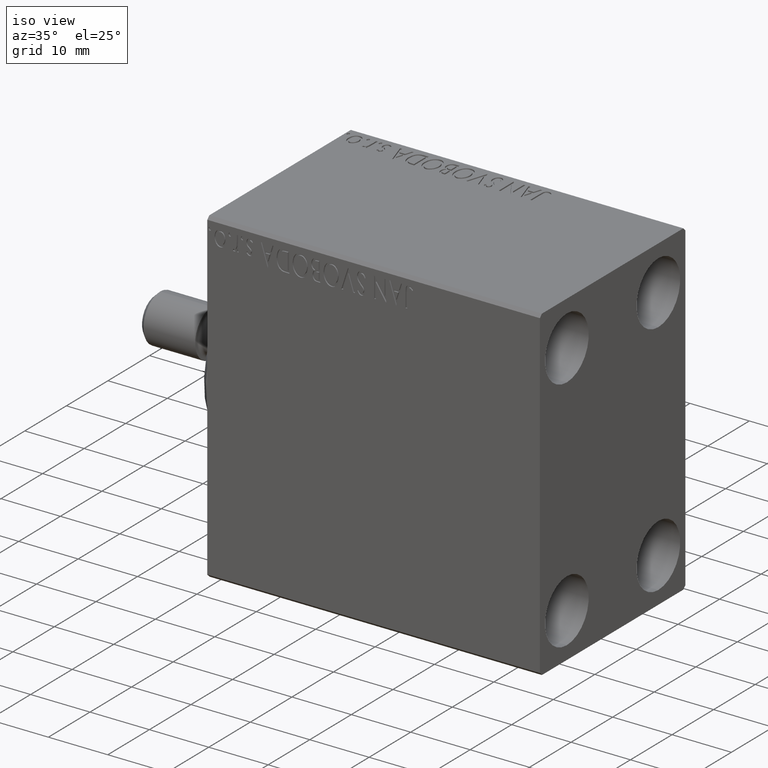
[diagram: clean part render]
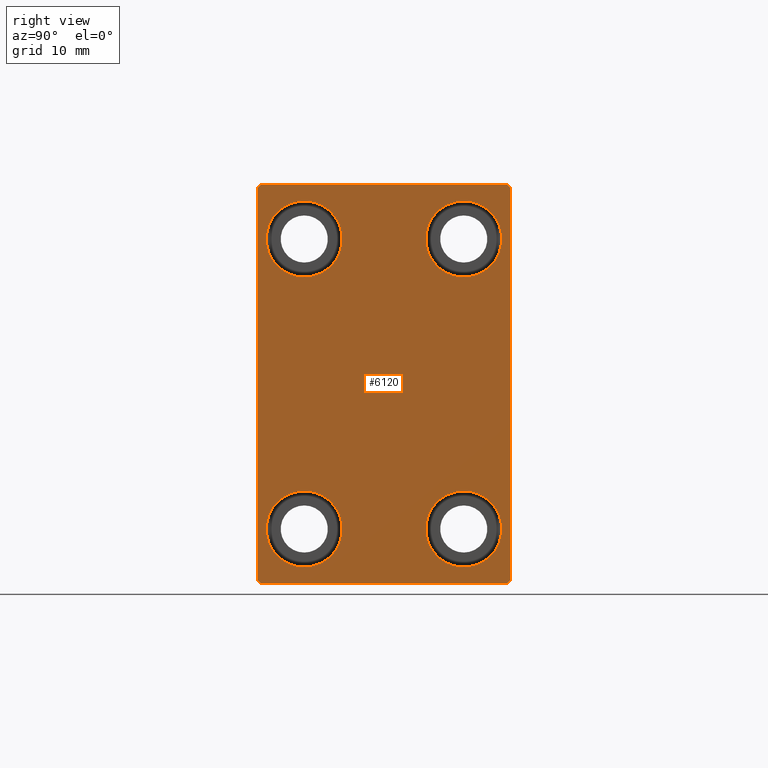
[diagram: tour spotlight — one face highlighted and labeled with its STEP entity id]
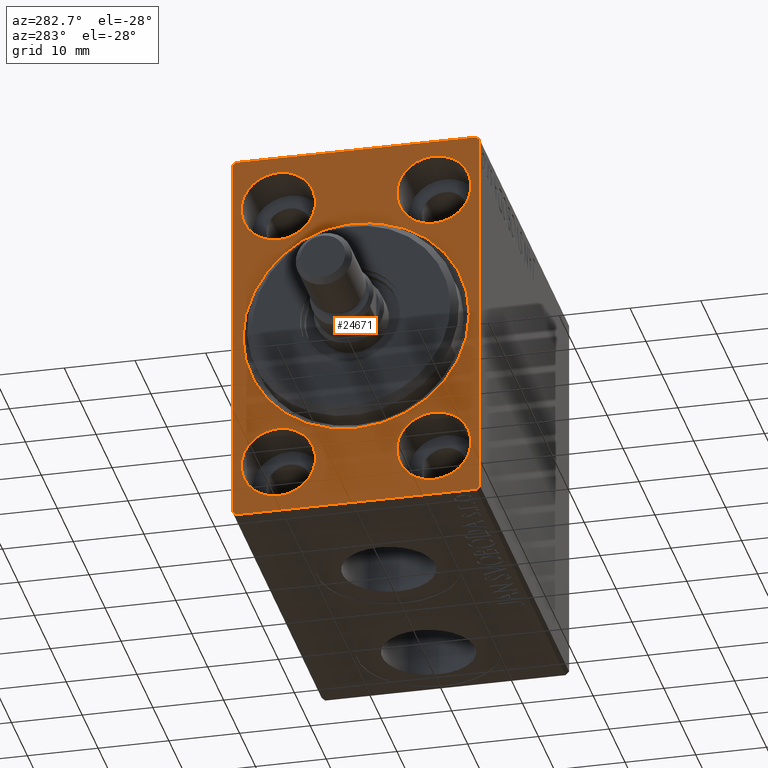
[diagram: tour spotlight — one face highlighted and labeled with its STEP entity id]
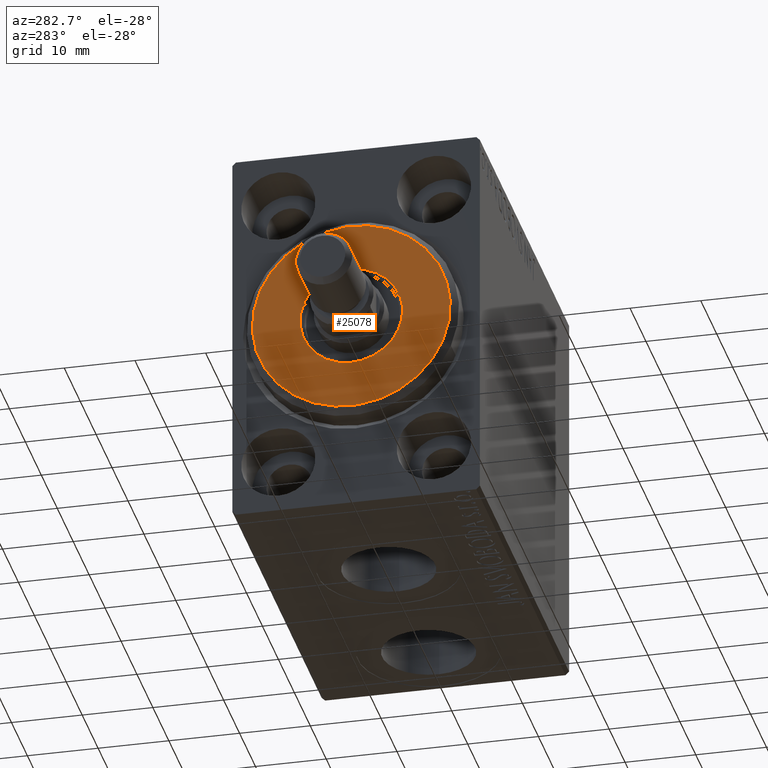
[diagram: tour spotlight — one face highlighted and labeled with its STEP entity id]
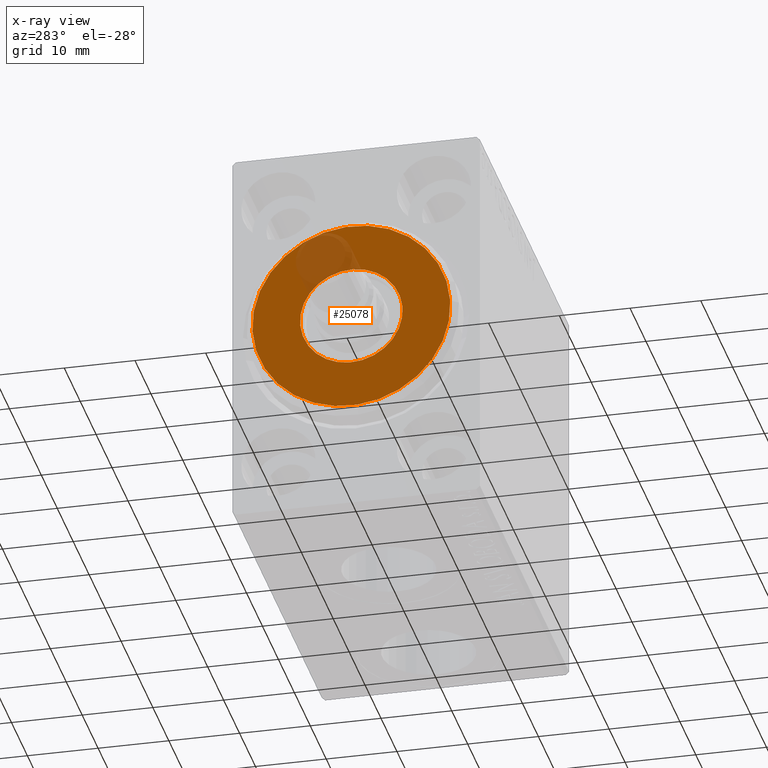
[diagram: x-ray of the same camera — body ghosted, this tour face saturated]
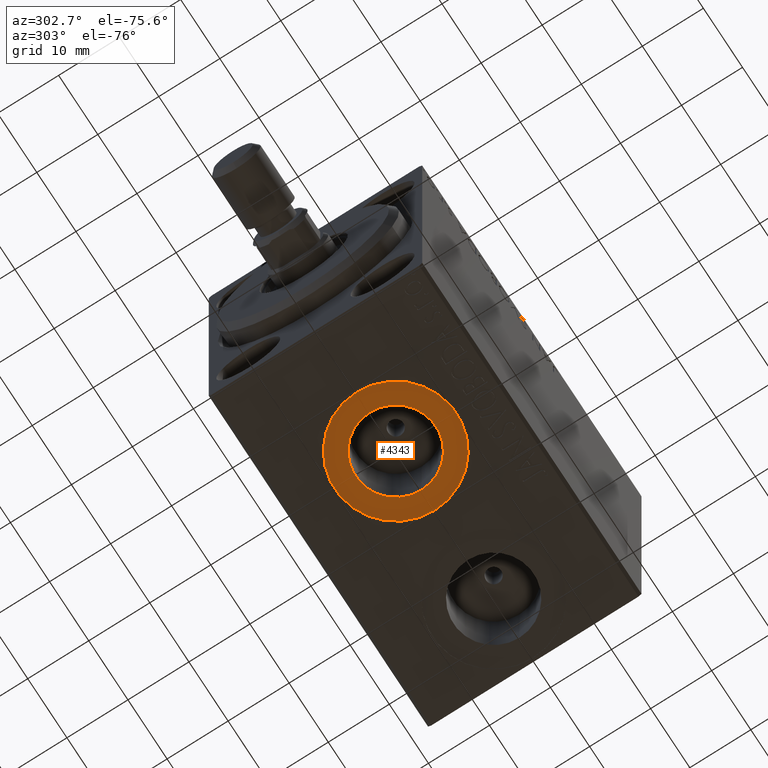
[diagram: tour spotlight — one face highlighted and labeled with its STEP entity id]
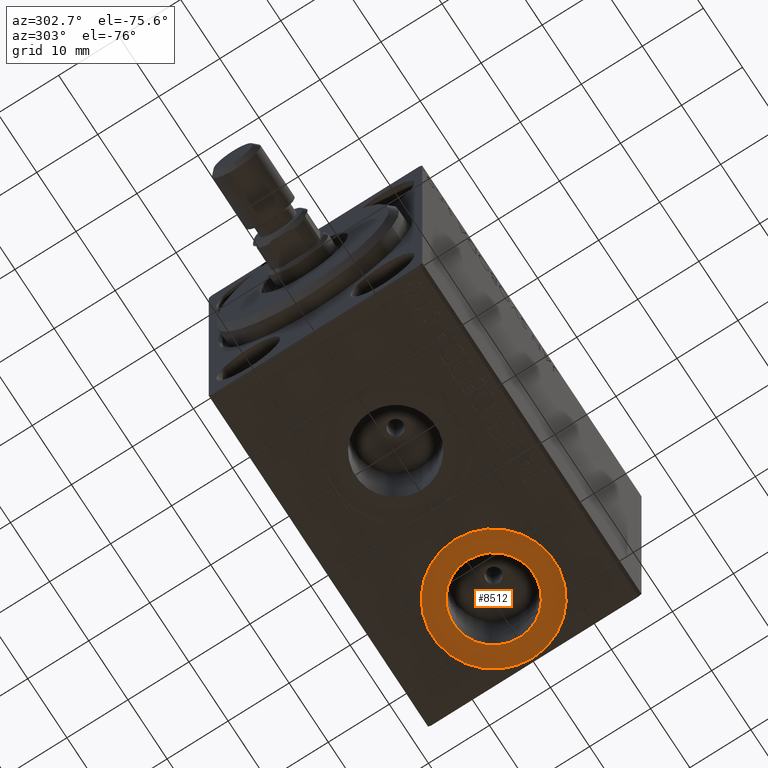
[diagram: tour spotlight — one face highlighted and labeled with its STEP entity id]
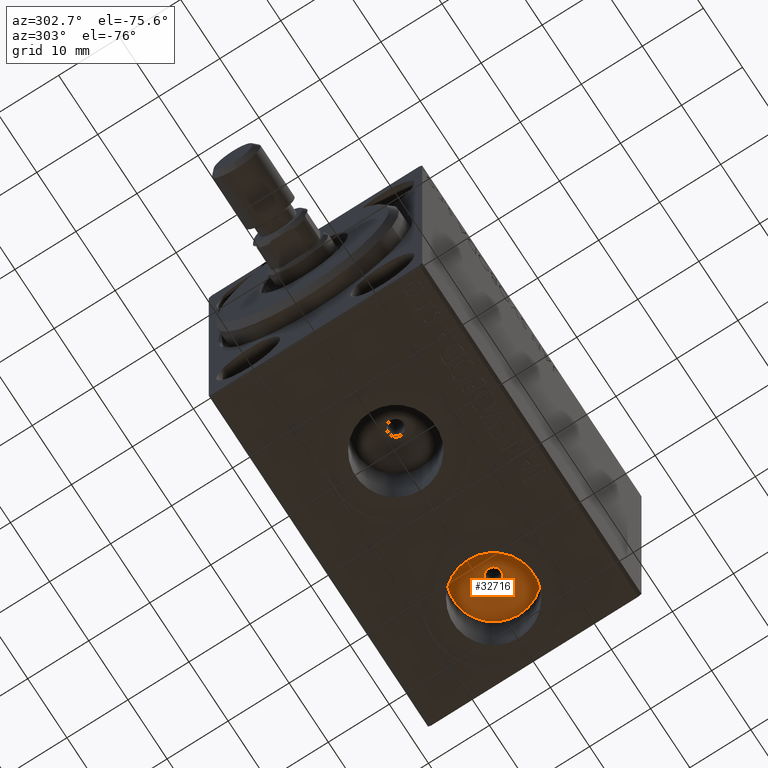
[diagram: tour spotlight — one face highlighted and labeled with its STEP entity id]
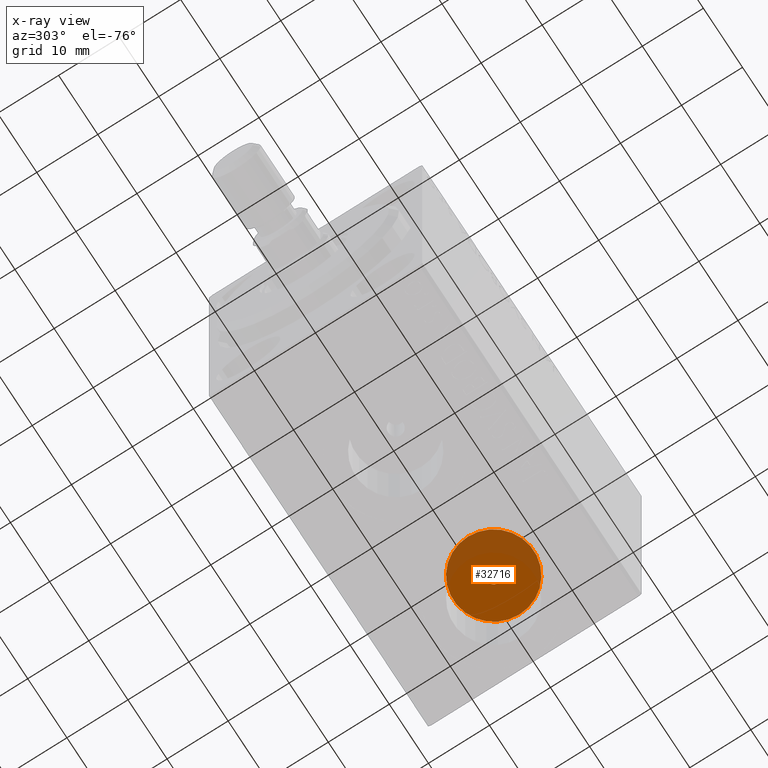
[diagram: x-ray of the same camera — body ghosted, this tour face saturated]
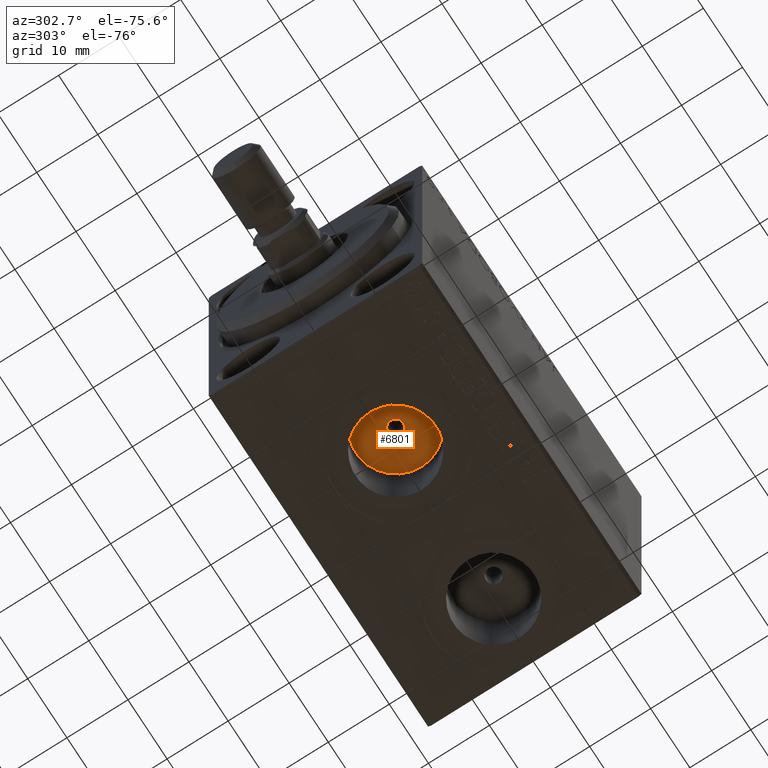
[diagram: tour spotlight — one face highlighted and labeled with its STEP entity id]
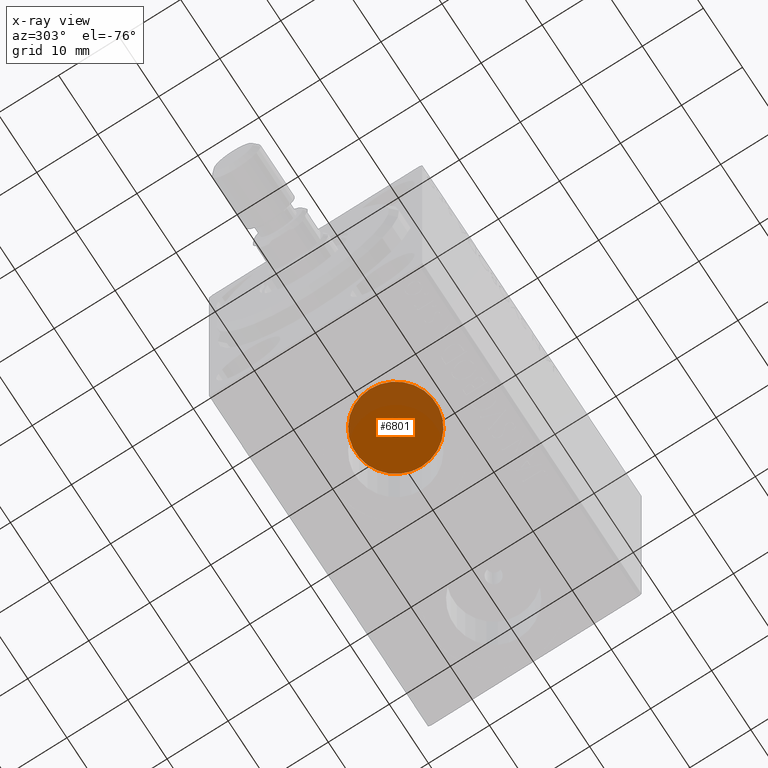
[diagram: x-ray of the same camera — body ghosted, this tour face saturated]
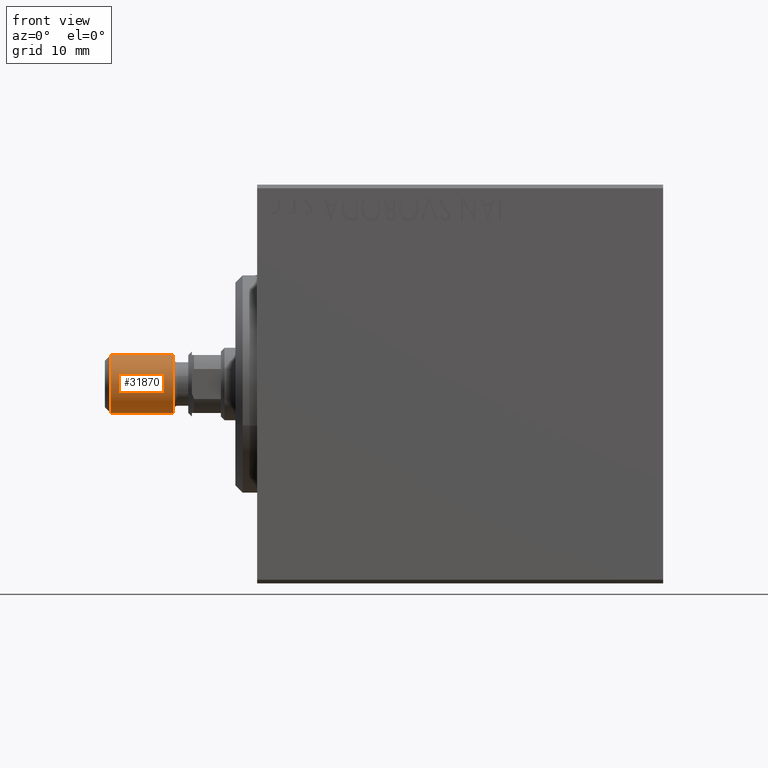
[diagram: tour spotlight — one face highlighted and labeled with its STEP entity id]
A machine part: a face-by-face anatomy tour. The part has 879 B-rep faces; the first image is the clean iso view, then the 8 largest visible faces are spotlighted one at a time (largest first), each with its STEP entity span.

Face 1 — right view, entity #6120. In plain terms, the highlighted planar face has unit normal (1, 0, 0).
Definition (entity closure, byte-faithful):
#105 = LINE ( 'NONE', #17449, #27207 ) ;
#1041 = EDGE_CURVE ( 'NONE', #15443, #11159, #5521, .T. ) ;
#1462 = EDGE_LOOP ( 'NONE', ( #13166, #6111 ) ) ;
#1482 = LINE ( 'NONE', #21744, #34280 ) ;
#1484 = CIRCLE ( 'NONE', #25193, 5.250000000000000888 ) ;
#1746 = DIRECTION ( 'NONE',  ( 0.000000000000000000, 0.000000000000000000, 1.000000000000000000 ) ) ;
#1947 = AXIS2_PLACEMENT_3D ( 'NONE', #43486, #6143, #6362 ) ;
#2053 = ORIENTED_EDGE ( 'NONE', *, *, #14049, .T. ) ;
#2074 = DIRECTION ( 'NONE',  ( -0.000000000000000000, 0.7071067811865474617, -0.7071067811865474617 ) ) ;
#2086 = CARTESIAN_POINT ( 'NONE',  ( 56.00000000000000000, -16.99999999999999289, -27.50000000000000355 ) ) ;
#2376 = DIRECTION ( 'NONE',  ( 0.000000000000000000, 0.000000000000000000, 1.000000000000000000 ) ) ;
#2525 = PLANE ( 'NONE',  #1947 ) ;
#3605 = CARTESIAN_POINT ( 'NONE',  ( 56.00000000000000000, 17.50000000000000000, 27.50000000000000355 ) ) ;
#3701 = CARTESIAN_POINT ( 'NONE',  ( 56.00000000000000000, -17.50000000000000000, 26.99999999999998934 ) ) ;
#4020 = DIRECTION ( 'NONE',  ( -1.000000000000000000, -0.000000000000000000, -0.000000000000000000 ) ) ;
#4136 = CIRCLE ( 'NONE', #40162, 5.250000000000000888 ) ;
#4275 = DIRECTION ( 'NONE',  ( 0.000000000000000000, 0.000000000000000000, 1.000000000000000000 ) ) ;
#4398 = EDGE_LOOP ( 'NONE', ( #6006, #21672 ) ) ;
#4548 = EDGE_CURVE ( 'NONE', #35701, #37944, #23448, .T. ) ;
#4636 = DIRECTION ( 'NONE',  ( 0.000000000000000000, 0.000000000000000000, 1.000000000000000000 ) ) ;
#4660 = EDGE_CURVE ( 'NONE', #16739, #21972, #35342, .T. ) ;
#4728 = ORIENTED_EDGE ( 'NONE', *, *, #35345, .T. ) ;
#5101 = CARTESIAN_POINT ( 'NONE',  ( 56.00000000000000000, -11.00000000000000355, -14.75000000000000000 ) ) ;
#5254 = LINE ( 'NONE', #26613, #31331 ) ;
#5521 = LINE ( 'NONE', #42647, #28510 ) ;
#5611 = ORIENTED_EDGE ( 'NONE', *, *, #32662, .T. ) ;
#6006 = ORIENTED_EDGE ( 'NONE', *, *, #9038, .T. ) ;
#6111 = ORIENTED_EDGE ( 'NONE', *, *, #38537, .T. ) ;
#6120 = ADVANCED_FACE ( 'NONE', ( #12903, #26617, #44148, #36752, #13111 ), #2525, .T. ) ;
#6143 = DIRECTION ( 'NONE',  ( 1.000000000000000000, 0.000000000000000000, 0.000000000000000000 ) ) ;
#6206 = AXIS2_PLACEMENT_3D ( 'NONE', #28149, #35120, #4275 ) ;
#6362 = DIRECTION ( 'NONE',  ( 0.000000000000000000, 0.000000000000000000, -1.000000000000000000 ) ) ;
#7104 = CARTESIAN_POINT ( 'NONE',  ( 56.00000000000000000, 11.00000000000000355, -14.75000000000000000 ) ) ;
#7541 = CARTESIAN_POINT ( 'NONE',  ( 56.00000000000000000, 11.00000000000000355, 20.00000000000000000 ) ) ;
#8080 = DIRECTION ( 'NONE',  ( -1.000000000000000000, -0.000000000000000000, -0.000000000000000000 ) ) ;
#8984 = ORIENTED_EDGE ( 'NONE', *, *, #4548, .T. ) ;
#9038 = EDGE_CURVE ( 'NONE', #13640, #16713, #23932, .T. ) ;
#9757 = EDGE_LOOP ( 'NONE', ( #20066, #11100 ) ) ;
#11000 = DIRECTION ( 'NONE',  ( 0.000000000000000000, 0.000000000000000000, 1.000000000000000000 ) ) ;
#11100 = ORIENTED_EDGE ( 'NONE', *, *, #29616, .T. ) ;
#11159 = VERTEX_POINT ( 'NONE', #34402 ) ;
#11193 = CARTESIAN_POINT ( 'NONE',  ( 56.00000000000000000, -11.00000000000000355, -25.25000000000000000 ) ) ;
#11353 = DIRECTION ( 'NONE',  ( -0.000000000000000000, 0.7071067811865474617, 0.7071067811865474617 ) ) ;
#11863 = EDGE_CURVE ( 'NONE', #16713, #13640, #16118, .T. ) ;
#12903 = FACE_BOUND ( 'NONE', #4398, .T. ) ;
#13111 = FACE_OUTER_BOUND ( 'NONE', #27987, .T. ) ;
#13166 = ORIENTED_EDGE ( 'NONE', *, *, #37576, .T. ) ;
#13193 = VERTEX_POINT ( 'NONE', #35519 ) ;
#13563 = VECTOR ( 'NONE', #42272, 1000.000000000000000 ) ;
#13640 = VERTEX_POINT ( 'NONE', #33148 ) ;
#14049 = EDGE_CURVE ( 'NONE', #37944, #35701, #19030, .T. ) ;
#14337 = DIRECTION ( 'NONE',  ( -1.000000000000000000, -0.000000000000000000, -0.000000000000000000 ) ) ;
#14863 = CARTESIAN_POINT ( 'NONE',  ( 56.00000000000000000, -17.50000000000000000, -27.50000000000000355 ) ) ;
#15079 = ORIENTED_EDGE ( 'NONE', *, *, #1041, .T. ) ;
#15443 = VERTEX_POINT ( 'NONE', #3701 ) ;
#16118 = CIRCLE ( 'NONE', #19702, 5.250000000000000888 ) ;
#16355 = LINE ( 'NONE', #23752, #31576 ) ;
#16713 = VERTEX_POINT ( 'NONE', #7104 ) ;
#16739 = VERTEX_POINT ( 'NONE', #2086 ) ;
#17449 = CARTESIAN_POINT ( 'NONE',  ( 56.00000000000000000, 22.25000000000000711, -22.25000000000000711 ) ) ;
#17691 = VERTEX_POINT ( 'NONE', #11193 ) ;
#18429 = CARTESIAN_POINT ( 'NONE',  ( 56.00000000000000000, 17.50000000000000711, -27.50000000000000355 ) ) ;
#18548 = VERTEX_POINT ( 'NONE', #40912 ) ;
#19030 = CIRCLE ( 'NONE', #23220, 5.250000000000000888 ) ;
#19465 = DIRECTION ( 'NONE',  ( 0.000000000000000000, 0.000000000000000000, -1.000000000000000000 ) ) ;
#19702 = AXIS2_PLACEMENT_3D ( 'NONE', #28412, #25699, #29304 ) ;
#20066 = ORIENTED_EDGE ( 'NONE', *, *, #43139, .T. ) ;
#20835 = EDGE_LOOP ( 'NONE', ( #8984, #2053 ) ) ;
#21336 = CARTESIAN_POINT ( 'NONE',  ( 56.00000000000000000, 17.50000000000000000, 26.99999999999999645 ) ) ;
#21450 = EDGE_CURVE ( 'NONE', #11159, #16739, #5254, .T. ) ;
#21672 = ORIENTED_EDGE ( 'NONE', *, *, #11863, .T. ) ;
#21735 = CARTESIAN_POINT ( 'NONE',  ( 56.00000000000000000, 11.00000000000000355, 20.00000000000000000 ) ) ;
#21744 = CARTESIAN_POINT ( 'NONE',  ( 56.00000000000000000, 22.25000000000000355, 22.25000000000000355 ) ) ;
#21972 = VERTEX_POINT ( 'NONE', #35074 ) ;
#23092 = DIRECTION ( 'NONE',  ( 0.000000000000000000, -0.7071067811865474617, -0.7071067811865474617 ) ) ;
#23220 = AXIS2_PLACEMENT_3D ( 'NONE', #38669, #4020, #11000 ) ;
#23448 = CIRCLE ( 'NONE', #6206, 5.250000000000000888 ) ;
#23584 = ORIENTED_EDGE ( 'NONE', *, *, #21450, .T. ) ;
#23752 = CARTESIAN_POINT ( 'NONE',  ( 56.00000000000000000, -22.24999999999999645, 22.24999999999999645 ) ) ;
#23932 = CIRCLE ( 'NONE', #28992, 5.250000000000000888 ) ;
#24304 = LINE ( 'NONE', #3605, #38863 ) ;
#24513 = EDGE_CURVE ( 'NONE', #36421, #37229, #1482, .T. ) ;
#25193 = AXIS2_PLACEMENT_3D ( 'NONE', #26240, #36610, #2376 ) ;
#25699 = DIRECTION ( 'NONE',  ( -1.000000000000000000, -0.000000000000000000, -0.000000000000000000 ) ) ;
#26184 = DIRECTION ( 'NONE',  ( 0.000000000000000000, 0.000000000000000000, 1.000000000000000000 ) ) ;
#26240 = CARTESIAN_POINT ( 'NONE',  ( 56.00000000000000000, -11.00000000000000355, -20.00000000000000000 ) ) ;
#26409 = DIRECTION ( 'NONE',  ( 0.000000000000000000, 0.000000000000000000, 1.000000000000000000 ) ) ;
#26613 = CARTESIAN_POINT ( 'NONE',  ( 56.00000000000000000, -22.25000000000000355, -22.25000000000000355 ) ) ;
#26617 = FACE_BOUND ( 'NONE', #20835, .T. ) ;
#27207 = VECTOR ( 'NONE', #11353, 1000.000000000000114 ) ;
#27803 = VECTOR ( 'NONE', #28365, 1000.000000000000000 ) ;
#27987 = EDGE_LOOP ( 'NONE', ( #31620, #4728, #15079, #23584, #29167, #5611, #34896, #30647 ) ) ;
#28149 = CARTESIAN_POINT ( 'NONE',  ( 56.00000000000000000, -11.00000000000000355, 20.00000000000000000 ) ) ;
#28175 = EDGE_CURVE ( 'NONE', #35210, #36421, #36191, .T. ) ;
#28365 = DIRECTION ( 'NONE',  ( 0.000000000000000000, 1.000000000000000000, 0.000000000000000000 ) ) ;
#28412 = CARTESIAN_POINT ( 'NONE',  ( 56.00000000000000000, 11.00000000000000355, -20.00000000000000000 ) ) ;
#28510 = VECTOR ( 'NONE', #19465, 1000.000000000000000 ) ;
#28992 = AXIS2_PLACEMENT_3D ( 'NONE', #32599, #8080, #1746 ) ;
#29167 = ORIENTED_EDGE ( 'NONE', *, *, #4660, .T. ) ;
#29304 = DIRECTION ( 'NONE',  ( 0.000000000000000000, 0.000000000000000000, 1.000000000000000000 ) ) ;
#29338 = VERTEX_POINT ( 'NONE', #5101 ) ;
#29616 = EDGE_CURVE ( 'NONE', #29338, #17691, #4136, .T. ) ;
#29696 = CARTESIAN_POINT ( 'NONE',  ( 56.00000000000000000, -11.00000000000000355, 14.75000000000000000 ) ) ;
#30230 = DIRECTION ( 'NONE',  ( -1.000000000000000000, -0.000000000000000000, -0.000000000000000000 ) ) ;
#30647 = ORIENTED_EDGE ( 'NONE', *, *, #24513, .T. ) ;
#31331 = VECTOR ( 'NONE', #2074, 1000.000000000000114 ) ;
#31576 = VECTOR ( 'NONE', #23092, 1000.000000000000114 ) ;
#31620 = ORIENTED_EDGE ( 'NONE', *, *, #39014, .T. ) ;
#31665 = DIRECTION ( 'NONE',  ( -0.000000000000000000, -0.7071067811865474617, 0.7071067811865474617 ) ) ;
#32138 = VERTEX_POINT ( 'NONE', #43652 ) ;
#32292 = DIRECTION ( 'NONE',  ( -1.000000000000000000, -0.000000000000000000, -0.000000000000000000 ) ) ;
#32599 = CARTESIAN_POINT ( 'NONE',  ( 56.00000000000000000, 11.00000000000000355, -20.00000000000000000 ) ) ;
#32662 = EDGE_CURVE ( 'NONE', #21972, #35210, #105, .T. ) ;
#33092 = CARTESIAN_POINT ( 'NONE',  ( 56.00000000000000000, 17.50000000000000711, -27.00000000000000355 ) ) ;
#33148 = CARTESIAN_POINT ( 'NONE',  ( 56.00000000000000000, 11.00000000000000355, -25.25000000000000000 ) ) ;
#34269 = CARTESIAN_POINT ( 'NONE',  ( 56.00000000000000000, -11.00000000000000355, 25.25000000000000000 ) ) ;
#34280 = VECTOR ( 'NONE', #31665, 1000.000000000000114 ) ;
#34402 = CARTESIAN_POINT ( 'NONE',  ( 56.00000000000000000, -17.50000000000000000, -26.99999999999999645 ) ) ;
#34896 = ORIENTED_EDGE ( 'NONE', *, *, #28175, .T. ) ;
#35074 = CARTESIAN_POINT ( 'NONE',  ( 56.00000000000000000, 17.00000000000000711, -27.50000000000000355 ) ) ;
#35120 = DIRECTION ( 'NONE',  ( -1.000000000000000000, -0.000000000000000000, -0.000000000000000000 ) ) ;
#35210 = VERTEX_POINT ( 'NONE', #33092 ) ;
#35240 = CIRCLE ( 'NONE', #38834, 5.250000000000000888 ) ;
#35342 = LINE ( 'NONE', #14863, #27803 ) ;
#35345 = EDGE_CURVE ( 'NONE', #18548, #15443, #16355, .T. ) ;
#35519 = CARTESIAN_POINT ( 'NONE',  ( 56.00000000000000000, 11.00000000000000355, 14.75000000000000000 ) ) ;
#35701 = VERTEX_POINT ( 'NONE', #29696 ) ;
#36191 = LINE ( 'NONE', #18429, #13563 ) ;
#36421 = VERTEX_POINT ( 'NONE', #21336 ) ;
#36610 = DIRECTION ( 'NONE',  ( -1.000000000000000000, -0.000000000000000000, -0.000000000000000000 ) ) ;
#36752 = FACE_BOUND ( 'NONE', #9757, .T. ) ;
#37229 = VERTEX_POINT ( 'NONE', #38072 ) ;
#37576 = EDGE_CURVE ( 'NONE', #13193, #32138, #35240, .T. ) ;
#37944 = VERTEX_POINT ( 'NONE', #34269 ) ;
#38072 = CARTESIAN_POINT ( 'NONE',  ( 56.00000000000000000, 16.99999999999999289, 27.50000000000000355 ) ) ;
#38259 = DIRECTION ( 'NONE',  ( 0.000000000000000000, -1.000000000000000000, -1.982541115402065110E-16 ) ) ;
#38537 = EDGE_CURVE ( 'NONE', #32138, #13193, #41008, .T. ) ;
#38669 = CARTESIAN_POINT ( 'NONE',  ( 56.00000000000000000, -11.00000000000000355, 20.00000000000000000 ) ) ;
#38834 = AXIS2_PLACEMENT_3D ( 'NONE', #21735, #14337, #4636 ) ;
#38863 = VECTOR ( 'NONE', #38259, 1000.000000000000000 ) ;
#39014 = EDGE_CURVE ( 'NONE', #37229, #18548, #24304, .T. ) ;
#40162 = AXIS2_PLACEMENT_3D ( 'NONE', #43494, #30230, #26409 ) ;
#40912 = CARTESIAN_POINT ( 'NONE',  ( 56.00000000000000000, -16.99999999999999289, 27.49999999999999645 ) ) ;
#41008 = CIRCLE ( 'NONE', #41717, 5.250000000000000888 ) ;
#41717 = AXIS2_PLACEMENT_3D ( 'NONE', #7541, #32292, #26184 ) ;
#42272 = DIRECTION ( 'NONE',  ( 0.000000000000000000, -1.261617073437677752E-16, 1.000000000000000000 ) ) ;
#42647 = CARTESIAN_POINT ( 'NONE',  ( 56.00000000000000000, -17.50000000000000000, 27.49999999999999645 ) ) ;
#43139 = EDGE_CURVE ( 'NONE', #17691, #29338, #1484, .T. ) ;
#43486 = CARTESIAN_POINT ( 'NONE',  ( 56.00000000000000000, 0.000000000000000000, 0.000000000000000000 ) ) ;
#43494 = CARTESIAN_POINT ( 'NONE',  ( 56.00000000000000000, -11.00000000000000355, -20.00000000000000000 ) ) ;
#43652 = CARTESIAN_POINT ( 'NONE',  ( 56.00000000000000000, 11.00000000000000355, 25.25000000000000000 ) ) ;
#44148 = FACE_BOUND ( 'NONE', #1462, .T. ) ;

Face 2 — auxiliary view, entity #24671. In plain terms, the highlighted planar face has unit normal (1, 0, 0).
Definition (entity closure, byte-faithful):
#285 = DIRECTION ( 'NONE',  ( 0.000000000000000000, -1.261617073437677752E-16, 1.000000000000000000 ) ) ;
#580 = CARTESIAN_POINT ( 'NONE',  ( 0.000000000000000000, -11.00000000000000355, 20.00000000000000000 ) ) ;
#1088 = EDGE_CURVE ( 'NONE', #16366, #17790, #2567, .T. ) ;
#1852 = CIRCLE ( 'NONE', #3310, 5.250000000000000888 ) ;
#2311 = CARTESIAN_POINT ( 'NONE',  ( 0.000000000000000000, 16.99999999999999289, 27.50000000000000355 ) ) ;
#2394 = CARTESIAN_POINT ( 'NONE',  ( 0.000000000000000000, 17.00000000000000711, -27.50000000000000355 ) ) ;
#2419 = CARTESIAN_POINT ( 'NONE',  ( 0.000000000000000000, -11.00000000000000355, -25.25000000000000000 ) ) ;
#2567 = CIRCLE ( 'NONE', #3372, 16.00000000000001421 ) ;
#2967 = EDGE_CURVE ( 'NONE', #24742, #15352, #1852, .T. ) ;
#3035 = CARTESIAN_POINT ( 'NONE',  ( 0.000000000000000000, 11.00000000000000355, 20.00000000000000000 ) ) ;
#3048 = DIRECTION ( 'NONE',  ( 0.000000000000000000, 0.000000000000000000, 1.000000000000000000 ) ) ;
#3254 = DIRECTION ( 'NONE',  ( 1.000000000000000000, 0.000000000000000000, 0.000000000000000000 ) ) ;
#3310 = AXIS2_PLACEMENT_3D ( 'NONE', #3035, #16794, #30515 ) ;
#3372 = AXIS2_PLACEMENT_3D ( 'NONE', #36122, #22169, #43304 ) ;
#3749 = ORIENTED_EDGE ( 'NONE', *, *, #22336, .F. ) ;
#3776 = ORIENTED_EDGE ( 'NONE', *, *, #32366, .F. ) ;
#3803 = EDGE_CURVE ( 'NONE', #16021, #17838, #19153, .T. ) ;
#3812 = LINE ( 'NONE', #24954, #9958 ) ;
#3888 = CARTESIAN_POINT ( 'NONE',  ( 0.000000000000000000, -11.00000000000000355, -20.00000000000000000 ) ) ;
#6648 = FACE_BOUND ( 'NONE', #43488, .T. ) ;
#6878 = CARTESIAN_POINT ( 'NONE',  ( 0.000000000000000000, -11.00000000000000355, 14.75000000000000000 ) ) ;
#7014 = VECTOR ( 'NONE', #33604, 1000.000000000000114 ) ;
#8273 = ORIENTED_EDGE ( 'NONE', *, *, #39589, .F. ) ;
#8431 = EDGE_CURVE ( 'NONE', #28613, #20048, #20408, .T. ) ;
#8550 = VECTOR ( 'NONE', #38520, 1000.000000000000114 ) ;
#8595 = ORIENTED_EDGE ( 'NONE', *, *, #28842, .T. ) ;
#9197 = CIRCLE ( 'NONE', #32895, 5.250000000000000888 ) ;
#9299 = ORIENTED_EDGE ( 'NONE', *, *, #1088, .T. ) ;
#9595 = ORIENTED_EDGE ( 'NONE', *, *, #38750, .T. ) ;
#9700 = ORIENTED_EDGE ( 'NONE', *, *, #33317, .F. ) ;
#9850 = CARTESIAN_POINT ( 'NONE',  ( 0.000000000000000000, -11.00000000000000355, 20.00000000000000000 ) ) ;
#9958 = VECTOR ( 'NONE', #38034, 1000.000000000000114 ) ;
#10070 = CARTESIAN_POINT ( 'NONE',  ( 0.000000000000000000, -17.50000000000000000, -27.50000000000000355 ) ) ;
#10112 = CARTESIAN_POINT ( 'NONE',  ( 0.000000000000000000, -17.50000000000000000, 26.99999999999998934 ) ) ;
#10248 = DIRECTION ( 'NONE',  ( 0.000000000000000000, 0.000000000000000000, -1.000000000000000000 ) ) ;
#10312 = ORIENTED_EDGE ( 'NONE', *, *, #42699, .F. ) ;
#10404 = VERTEX_POINT ( 'NONE', #15396 ) ;
#10592 = EDGE_LOOP ( 'NONE', ( #8273, #29959 ) ) ;
#10674 = CIRCLE ( 'NONE', #17863, 5.250000000000000888 ) ;
#11426 = ORIENTED_EDGE ( 'NONE', *, *, #30789, .F. ) ;
#11442 = CARTESIAN_POINT ( 'NONE',  ( 0.000000000000000000, -17.50000000000000000, 27.49999999999999645 ) ) ;
#11528 = LINE ( 'NONE', #25244, #40558 ) ;
#11553 = ORIENTED_EDGE ( 'NONE', *, *, #17226, .T. ) ;
#11680 = CIRCLE ( 'NONE', #28932, 5.250000000000000888 ) ;
#12451 = VERTEX_POINT ( 'NONE', #21002 ) ;
#12947 = DIRECTION ( 'NONE',  ( -1.000000000000000000, 0.000000000000000000, 0.000000000000000000 ) ) ;
#13087 = EDGE_CURVE ( 'NONE', #19126, #35791, #18289, .T. ) ;
#13333 = VECTOR ( 'NONE', #25378, 1000.000000000000000 ) ;
#13519 = CARTESIAN_POINT ( 'NONE',  ( 0.000000000000000000, 17.50000000000000711, -27.00000000000000355 ) ) ;
#13713 = CARTESIAN_POINT ( 'NONE',  ( 0.000000000000000000, 11.00000000000000355, -20.00000000000000000 ) ) ;
#14154 = AXIS2_PLACEMENT_3D ( 'NONE', #23097, #44463, #3048 ) ;
#14254 = DIRECTION ( 'NONE',  ( 0.000000000000000000, 0.000000000000000000, 1.000000000000000000 ) ) ;
#14564 = ORIENTED_EDGE ( 'NONE', *, *, #20023, .F. ) ;
#14879 = AXIS2_PLACEMENT_3D ( 'NONE', #16565, #3254, #10248 ) ;
#15352 = VERTEX_POINT ( 'NONE', #27343 ) ;
#15396 = CARTESIAN_POINT ( 'NONE',  ( 0.000000000000000000, -11.00000000000000355, 25.25000000000000000 ) ) ;
#16021 = VERTEX_POINT ( 'NONE', #2419 ) ;
#16366 = VERTEX_POINT ( 'NONE', #33547 ) ;
#16391 = DIRECTION ( 'NONE',  ( -1.000000000000000000, 0.000000000000000000, 0.000000000000000000 ) ) ;
#16565 = CARTESIAN_POINT ( 'NONE',  ( 0.000000000000000000, 0.000000000000000000, 0.000000000000000000 ) ) ;
#16632 = VERTEX_POINT ( 'NONE', #6878 ) ;
#16794 = DIRECTION ( 'NONE',  ( -1.000000000000000000, 0.000000000000000000, 0.000000000000000000 ) ) ;
#17005 = FACE_BOUND ( 'NONE', #25832, .T. ) ;
#17094 = DIRECTION ( 'NONE',  ( 0.000000000000000000, 0.000000000000000000, 1.000000000000000000 ) ) ;
#17226 = EDGE_CURVE ( 'NONE', #42399, #12451, #11528, .T. ) ;
#17234 = FACE_OUTER_BOUND ( 'NONE', #35873, .T. ) ;
#17790 = VERTEX_POINT ( 'NONE', #36383 ) ;
#17838 = VERTEX_POINT ( 'NONE', #40853 ) ;
#17863 = AXIS2_PLACEMENT_3D ( 'NONE', #9850, #16391, #19976 ) ;
#18241 = VERTEX_POINT ( 'NONE', #20718 ) ;
#18289 = CIRCLE ( 'NONE', #42628, 5.250000000000000888 ) ;
#18364 = CARTESIAN_POINT ( 'NONE',  ( 0.000000000000000000, 17.50000000000000000, 27.50000000000000355 ) ) ;
#18782 = AXIS2_PLACEMENT_3D ( 'NONE', #27087, #20556, #41034 ) ;
#19126 = VERTEX_POINT ( 'NONE', #26433 ) ;
#19153 = CIRCLE ( 'NONE', #14154, 5.250000000000000888 ) ;
#19875 = DIRECTION ( 'NONE',  ( 0.000000000000000000, 0.000000000000000000, -1.000000000000000000 ) ) ;
#19976 = DIRECTION ( 'NONE',  ( 0.000000000000000000, 0.000000000000000000, 1.000000000000000000 ) ) ;
#19990 = ORIENTED_EDGE ( 'NONE', *, *, #2967, .F. ) ;
#20023 = EDGE_CURVE ( 'NONE', #42399, #22492, #27494, .T. ) ;
#20048 = VERTEX_POINT ( 'NONE', #2394 ) ;
#20408 = LINE ( 'NONE', #10070, #28216 ) ;
#20556 = DIRECTION ( 'NONE',  ( -1.000000000000000000, 0.000000000000000000, 0.000000000000000000 ) ) ;
#20718 = CARTESIAN_POINT ( 'NONE',  ( 0.000000000000000000, 16.99999999999999289, 27.50000000000000355 ) ) ;
#20817 = FACE_BOUND ( 'NONE', #35239, .T. ) ;
#21002 = CARTESIAN_POINT ( 'NONE',  ( 0.000000000000000000, -16.99999999999999289, 27.49999999999999645 ) ) ;
#21482 = VECTOR ( 'NONE', #285, 1000.000000000000000 ) ;
#22169 = DIRECTION ( 'NONE',  ( 1.000000000000000000, 0.000000000000000000, 0.000000000000000000 ) ) ;
#22336 = EDGE_CURVE ( 'NONE', #18241, #12451, #41978, .T. ) ;
#22492 = VERTEX_POINT ( 'NONE', #42870 ) ;
#23097 = CARTESIAN_POINT ( 'NONE',  ( 0.000000000000000000, -11.00000000000000355, -20.00000000000000000 ) ) ;
#24270 = CARTESIAN_POINT ( 'NONE',  ( 0.000000000000000000, 11.00000000000000355, -14.75000000000000000 ) ) ;
#24416 = CARTESIAN_POINT ( 'NONE',  ( 0.000000000000000000, 17.50000000000000000, 26.99999999999999645 ) ) ;
#24671 = ADVANCED_FACE ( 'NONE', ( #6648, #17005, #34100, #20817, #41515, #17234 ), #33882, .F. ) ;
#24742 = VERTEX_POINT ( 'NONE', #34554 ) ;
#24954 = CARTESIAN_POINT ( 'NONE',  ( 0.000000000000000000, -16.99999999999999289, -27.50000000000000355 ) ) ;
#25032 = LINE ( 'NONE', #30913, #21482 ) ;
#25244 = CARTESIAN_POINT ( 'NONE',  ( 0.000000000000000000, -17.50000000000000000, 26.99999999999998934 ) ) ;
#25378 = DIRECTION ( 'NONE',  ( 0.000000000000000000, 0.000000000000000000, -1.000000000000000000 ) ) ;
#25832 = EDGE_LOOP ( 'NONE', ( #32629, #38120 ) ) ;
#26419 = DIRECTION ( 'NONE',  ( 1.000000000000000000, 0.000000000000000000, 0.000000000000000000 ) ) ;
#26429 = VERTEX_POINT ( 'NONE', #13519 ) ;
#26433 = CARTESIAN_POINT ( 'NONE',  ( 0.000000000000000000, 11.00000000000000355, -25.25000000000000000 ) ) ;
#26663 = DIRECTION ( 'NONE',  ( 0.000000000000000000, 0.000000000000000000, 1.000000000000000000 ) ) ;
#27085 = ORIENTED_EDGE ( 'NONE', *, *, #29673, .T. ) ;
#27087 = CARTESIAN_POINT ( 'NONE',  ( 0.000000000000000000, 11.00000000000000355, -20.00000000000000000 ) ) ;
#27343 = CARTESIAN_POINT ( 'NONE',  ( 0.000000000000000000, 11.00000000000000355, 25.25000000000000000 ) ) ;
#27390 = DIRECTION ( 'NONE',  ( 0.000000000000000000, 0.000000000000000000, 1.000000000000000000 ) ) ;
#27494 = LINE ( 'NONE', #11442, #13333 ) ;
#28216 = VECTOR ( 'NONE', #44485, 1000.000000000000000 ) ;
#28613 = VERTEX_POINT ( 'NONE', #28841 ) ;
#28841 = CARTESIAN_POINT ( 'NONE',  ( 0.000000000000000000, -16.99999999999999289, -27.50000000000000355 ) ) ;
#28842 = EDGE_CURVE ( 'NONE', #28613, #22492, #3812, .T. ) ;
#28932 = AXIS2_PLACEMENT_3D ( 'NONE', #3888, #35391, #14254 ) ;
#29066 = LINE ( 'NONE', #41885, #8550 ) ;
#29673 = EDGE_CURVE ( 'NONE', #18241, #38504, #37193, .T. ) ;
#29864 = EDGE_CURVE ( 'NONE', #26429, #20048, #29066, .T. ) ;
#29959 = ORIENTED_EDGE ( 'NONE', *, *, #3803, .F. ) ;
#30515 = DIRECTION ( 'NONE',  ( 0.000000000000000000, 0.000000000000000000, 1.000000000000000000 ) ) ;
#30789 = EDGE_CURVE ( 'NONE', #15352, #24742, #9197, .T. ) ;
#30913 = CARTESIAN_POINT ( 'NONE',  ( 0.000000000000000000, 17.50000000000000711, -27.50000000000000355 ) ) ;
#31667 = AXIS2_PLACEMENT_3D ( 'NONE', #580, #44478, #27390 ) ;
#32366 = EDGE_CURVE ( 'NONE', #10404, #16632, #10674, .T. ) ;
#32629 = ORIENTED_EDGE ( 'NONE', *, *, #44171, .F. ) ;
#32895 = AXIS2_PLACEMENT_3D ( 'NONE', #33207, #12947, #26663 ) ;
#33125 = CIRCLE ( 'NONE', #37420, 16.00000000000001421 ) ;
#33207 = CARTESIAN_POINT ( 'NONE',  ( 0.000000000000000000, 11.00000000000000355, 20.00000000000000000 ) ) ;
#33317 = EDGE_CURVE ( 'NONE', #26429, #38504, #25032, .T. ) ;
#33437 = ORIENTED_EDGE ( 'NONE', *, *, #29864, .T. ) ;
#33547 = CARTESIAN_POINT ( 'NONE',  ( 0.000000000000000000, 1.959434878635766709E-15, -16.00000000000001421 ) ) ;
#33604 = DIRECTION ( 'NONE',  ( -0.000000000000000000, 0.7071067811865474617, -0.7071067811865474617 ) ) ;
#33833 = CARTESIAN_POINT ( 'NONE',  ( 0.000000000000000000, 0.000000000000000000, 0.000000000000000000 ) ) ;
#33882 = PLANE ( 'NONE',  #14879 ) ;
#34100 = FACE_BOUND ( 'NONE', #34844, .T. ) ;
#34554 = CARTESIAN_POINT ( 'NONE',  ( 0.000000000000000000, 11.00000000000000355, 14.75000000000000000 ) ) ;
#34844 = EDGE_LOOP ( 'NONE', ( #3776, #10312 ) ) ;
#35239 = EDGE_LOOP ( 'NONE', ( #11426, #19990 ) ) ;
#35391 = DIRECTION ( 'NONE',  ( -1.000000000000000000, 0.000000000000000000, 0.000000000000000000 ) ) ;
#35791 = VERTEX_POINT ( 'NONE', #24270 ) ;
#35873 = EDGE_LOOP ( 'NONE', ( #14564, #11553, #3749, #27085, #9700, #33437, #38394, #8595 ) ) ;
#36122 = CARTESIAN_POINT ( 'NONE',  ( 0.000000000000000000, 0.000000000000000000, 0.000000000000000000 ) ) ;
#36383 = CARTESIAN_POINT ( 'NONE',  ( 0.000000000000000000, 0.000000000000000000, 16.00000000000001421 ) ) ;
#37193 = LINE ( 'NONE', #2311, #7014 ) ;
#37420 = AXIS2_PLACEMENT_3D ( 'NONE', #33833, #26419, #19875 ) ;
#37788 = DIRECTION ( 'NONE',  ( -1.000000000000000000, 0.000000000000000000, 0.000000000000000000 ) ) ;
#38034 = DIRECTION ( 'NONE',  ( -0.000000000000000000, -0.7071067811865474617, 0.7071067811865474617 ) ) ;
#38120 = ORIENTED_EDGE ( 'NONE', *, *, #13087, .F. ) ;
#38394 = ORIENTED_EDGE ( 'NONE', *, *, #8431, .F. ) ;
#38504 = VERTEX_POINT ( 'NONE', #24416 ) ;
#38520 = DIRECTION ( 'NONE',  ( 0.000000000000000000, -0.7071067811865474617, -0.7071067811865474617 ) ) ;
#38750 = EDGE_CURVE ( 'NONE', #17790, #16366, #33125, .T. ) ;
#38839 = DIRECTION ( 'NONE',  ( 0.000000000000000000, -1.000000000000000000, -1.982541115402065110E-16 ) ) ;
#39262 = VECTOR ( 'NONE', #38839, 1000.000000000000000 ) ;
#39589 = EDGE_CURVE ( 'NONE', #17838, #16021, #11680, .T. ) ;
#40558 = VECTOR ( 'NONE', #43664, 1000.000000000000114 ) ;
#40853 = CARTESIAN_POINT ( 'NONE',  ( 0.000000000000000000, -11.00000000000000355, -14.75000000000000000 ) ) ;
#41034 = DIRECTION ( 'NONE',  ( 0.000000000000000000, 0.000000000000000000, 1.000000000000000000 ) ) ;
#41515 = FACE_BOUND ( 'NONE', #10592, .T. ) ;
#41709 = CIRCLE ( 'NONE', #31667, 5.250000000000000888 ) ;
#41885 = CARTESIAN_POINT ( 'NONE',  ( 0.000000000000000000, 17.50000000000000711, -27.00000000000000355 ) ) ;
#41978 = LINE ( 'NONE', #18364, #39262 ) ;
#42399 = VERTEX_POINT ( 'NONE', #10112 ) ;
#42483 = CIRCLE ( 'NONE', #18782, 5.250000000000000888 ) ;
#42628 = AXIS2_PLACEMENT_3D ( 'NONE', #13713, #37788, #17094 ) ;
#42699 = EDGE_CURVE ( 'NONE', #16632, #10404, #41709, .T. ) ;
#42870 = CARTESIAN_POINT ( 'NONE',  ( 0.000000000000000000, -17.50000000000000000, -26.99999999999999645 ) ) ;
#43304 = DIRECTION ( 'NONE',  ( 0.000000000000000000, 0.000000000000000000, -1.000000000000000000 ) ) ;
#43488 = EDGE_LOOP ( 'NONE', ( #9595, #9299 ) ) ;
#43664 = DIRECTION ( 'NONE',  ( -0.000000000000000000, 0.7071067811865474617, 0.7071067811865474617 ) ) ;
#44171 = EDGE_CURVE ( 'NONE', #35791, #19126, #42483, .T. ) ;
#44463 = DIRECTION ( 'NONE',  ( -1.000000000000000000, 0.000000000000000000, 0.000000000000000000 ) ) ;
#44478 = DIRECTION ( 'NONE',  ( -1.000000000000000000, 0.000000000000000000, 0.000000000000000000 ) ) ;
#44485 = DIRECTION ( 'NONE',  ( 0.000000000000000000, 1.000000000000000000, 0.000000000000000000 ) ) ;

Face 3 — auxiliary view, entity #25078. An x-ray twin of the same camera follows (body ghosted, this face saturated) — the face is partly hidden behind the body. In plain terms, the highlighted planar face has unit normal (-1, 0, 0).
Definition (entity closure, byte-faithful):
#76 = EDGE_CURVE ( 'NONE', #34723, #30458, #27805, .T. ) ;
#743 = CARTESIAN_POINT ( 'NONE',  ( 3.000000000000000000, 1.775737858763662015E-15, -13.99999999999999645 ) ) ;
#2487 = EDGE_LOOP ( 'NONE', ( #26703, #26104 ) ) ;
#3217 = DIRECTION ( 'NONE',  ( 1.000000000000000000, -0.000000000000000000, 0.000000000000000000 ) ) ;
#3672 = CARTESIAN_POINT ( 'NONE',  ( 3.000000000000000000, 0.000000000000000000, 0.000000000000000000 ) ) ;
#4290 = EDGE_CURVE ( 'NONE', #38119, #25757, #17013, .T. ) ;
#4916 = CIRCLE ( 'NONE', #33663, 13.99999999999999645 ) ;
#8301 = AXIS2_PLACEMENT_3D ( 'NONE', #12330, #8945, #39772 ) ;
#8404 = AXIS2_PLACEMENT_3D ( 'NONE', #3672, #3217, #27758 ) ;
#8945 = DIRECTION ( 'NONE',  ( 1.000000000000000000, 0.000000000000000000, 0.000000000000000000 ) ) ;
#11312 = AXIS2_PLACEMENT_3D ( 'NONE', #34495, #20304, #13115 ) ;
#12330 = CARTESIAN_POINT ( 'NONE',  ( 3.000000000000000000, 0.000000000000000000, 0.000000000000000000 ) ) ;
#13115 = DIRECTION ( 'NONE',  ( 0.000000000000000000, 0.000000000000000000, -1.000000000000000000 ) ) ;
#14919 = EDGE_LOOP ( 'NONE', ( #26185, #15855 ) ) ;
#15855 = ORIENTED_EDGE ( 'NONE', *, *, #20132, .F. ) ;
#16505 = PLANE ( 'NONE',  #11312 ) ;
#17013 = CIRCLE ( 'NONE', #30659, 7.249999999999999112 ) ;
#20132 = EDGE_CURVE ( 'NONE', #25757, #38119, #27697, .T. ) ;
#20304 = DIRECTION ( 'NONE',  ( 1.000000000000000000, -0.000000000000000000, 0.000000000000000000 ) ) ;
#21356 = DIRECTION ( 'NONE',  ( 1.000000000000000000, -0.000000000000000000, 0.000000000000000000 ) ) ;
#24125 = FACE_BOUND ( 'NONE', #14919, .T. ) ;
#25037 = DIRECTION ( 'NONE',  ( 1.000000000000000000, 0.000000000000000000, 0.000000000000000000 ) ) ;
#25078 = ADVANCED_FACE ( 'NONE', ( #30442, #24125 ), #16505, .T. ) ;
#25757 = VERTEX_POINT ( 'NONE', #44220 ) ;
#26104 = ORIENTED_EDGE ( 'NONE', *, *, #32998, .T. ) ;
#26185 = ORIENTED_EDGE ( 'NONE', *, *, #4290, .F. ) ;
#26703 = ORIENTED_EDGE ( 'NONE', *, *, #76, .T. ) ;
#27697 = CIRCLE ( 'NONE', #8301, 7.249999999999999112 ) ;
#27758 = DIRECTION ( 'NONE',  ( 0.000000000000000000, 0.000000000000000000, -1.000000000000000000 ) ) ;
#27805 = CIRCLE ( 'NONE', #8404, 13.99999999999999645 ) ;
#30442 = FACE_OUTER_BOUND ( 'NONE', #2487, .T. ) ;
#30458 = VERTEX_POINT ( 'NONE', #743 ) ;
#30659 = AXIS2_PLACEMENT_3D ( 'NONE', #35618, #25037, #32249 ) ;
#31940 = DIRECTION ( 'NONE',  ( 0.000000000000000000, 0.000000000000000000, -1.000000000000000000 ) ) ;
#32249 = DIRECTION ( 'NONE',  ( 0.000000000000000000, 0.000000000000000000, -1.000000000000000000 ) ) ;
#32998 = EDGE_CURVE ( 'NONE', #30458, #34723, #4916, .T. ) ;
#33663 = AXIS2_PLACEMENT_3D ( 'NONE', #41619, #21356, #31940 ) ;
#34495 = CARTESIAN_POINT ( 'NONE',  ( 3.000000000000000000, 0.000000000000000000, 0.000000000000000000 ) ) ;
#34723 = VERTEX_POINT ( 'NONE', #39774 ) ;
#35618 = CARTESIAN_POINT ( 'NONE',  ( 3.000000000000000000, 0.000000000000000000, 0.000000000000000000 ) ) ;
#36435 = CARTESIAN_POINT ( 'NONE',  ( 3.000000000000000000, 0.000000000000000000, -7.249999999999999112 ) ) ;
#38119 = VERTEX_POINT ( 'NONE', #36435 ) ;
#39772 = DIRECTION ( 'NONE',  ( 0.000000000000000000, 0.000000000000000000, -1.000000000000000000 ) ) ;
#39774 = CARTESIAN_POINT ( 'NONE',  ( 3.000000000000000000, 0.000000000000000000, 13.99999999999999645 ) ) ;
#41619 = CARTESIAN_POINT ( 'NONE',  ( 3.000000000000000000, 0.000000000000000000, 0.000000000000000000 ) ) ;
#44220 = CARTESIAN_POINT ( 'NONE',  ( 3.000000000000000000, 8.878689293818310074E-16, 7.249999999999999112 ) ) ;

Face 4 — auxiliary view, entity #4343. In plain terms, the highlighted planar face has unit normal (0, 0, -1).
Definition (entity closure, byte-faithful):
#441 = AXIS2_PLACEMENT_3D ( 'NONE', #4555, #43016, #33350 ) ;
#1305 = CIRCLE ( 'NONE', #20716, 10.00000000000000000 ) ;
#2220 = VERTEX_POINT ( 'NONE', #18975 ) ;
#4343 = ADVANCED_FACE ( 'NONE', ( #11323, #32468 ), #29311, .T. ) ;
#4555 = CARTESIAN_POINT ( 'NONE',  ( 0.000000000000000000, 0.000000000000000000, -27.40000000000000568 ) ) ;
#4809 = CARTESIAN_POINT ( 'NONE',  ( 20.50000000000000355, -2.726986211408916281E-15, -27.40000000000000568 ) ) ;
#5996 = EDGE_CURVE ( 'NONE', #15720, #39476, #11290, .T. ) ;
#8482 = DIRECTION ( 'NONE',  ( 0.000000000000000000, 0.000000000000000000, -1.000000000000000000 ) ) ;
#10133 = DIRECTION ( 'NONE',  ( 0.000000000000000000, 0.000000000000000000, -1.000000000000000000 ) ) ;
#11053 = AXIS2_PLACEMENT_3D ( 'NONE', #39079, #8482, #38631 ) ;
#11137 = VERTEX_POINT ( 'NONE', #27644 ) ;
#11172 = EDGE_CURVE ( 'NONE', #11137, #2220, #23962, .T. ) ;
#11290 = CIRCLE ( 'NONE', #42212, 10.00000000000000000 ) ;
#11323 = FACE_BOUND ( 'NONE', #11868, .T. ) ;
#11850 = EDGE_LOOP ( 'NONE', ( #16316, #33164 ) ) ;
#11868 = EDGE_LOOP ( 'NONE', ( #30989, #41468 ) ) ;
#14395 = CARTESIAN_POINT ( 'NONE',  ( 10.50000000000000355, -2.726986211408916281E-15, -27.40000000000000568 ) ) ;
#14793 = CARTESIAN_POINT ( 'NONE',  ( 20.50000000000000355, -2.726986211408916281E-15, -27.40000000000000568 ) ) ;
#15720 = VERTEX_POINT ( 'NONE', #14395 ) ;
#16158 = EDGE_CURVE ( 'NONE', #2220, #11137, #44093, .T. ) ;
#16316 = ORIENTED_EDGE ( 'NONE', *, *, #5996, .T. ) ;
#16527 = CARTESIAN_POINT ( 'NONE',  ( 30.50000000000000711, -1.502339412261563419E-15, -27.40000000000000568 ) ) ;
#18975 = CARTESIAN_POINT ( 'NONE',  ( 27.08000000000000540, -1.921168617569958028E-15, -27.40000000000000568 ) ) ;
#20716 = AXIS2_PLACEMENT_3D ( 'NONE', #44094, #10133, #30612 ) ;
#21538 = DIRECTION ( 'NONE',  ( 0.000000000000000000, 0.000000000000000000, -1.000000000000000000 ) ) ;
#23962 = CIRCLE ( 'NONE', #41223, 6.580000000000002736 ) ;
#27644 = CARTESIAN_POINT ( 'NONE',  ( 13.92000000000000171, -2.726986211408916281E-15, -27.40000000000000568 ) ) ;
#28522 = DIRECTION ( 'NONE',  ( -1.000000000000000000, 0.000000000000000000, 0.000000000000000000 ) ) ;
#29311 = PLANE ( 'NONE',  #441 ) ;
#29336 = DIRECTION ( 'NONE',  ( 0.000000000000000000, 0.000000000000000000, -1.000000000000000000 ) ) ;
#30612 = DIRECTION ( 'NONE',  ( -1.000000000000000000, 0.000000000000000000, 0.000000000000000000 ) ) ;
#30989 = ORIENTED_EDGE ( 'NONE', *, *, #11172, .F. ) ;
#32468 = FACE_OUTER_BOUND ( 'NONE', #11850, .T. ) ;
#32496 = DIRECTION ( 'NONE',  ( -1.000000000000000000, 0.000000000000000000, 0.000000000000000000 ) ) ;
#32923 = EDGE_CURVE ( 'NONE', #39476, #15720, #1305, .T. ) ;
#33164 = ORIENTED_EDGE ( 'NONE', *, *, #32923, .T. ) ;
#33350 = DIRECTION ( 'NONE',  ( -1.000000000000000000, 0.000000000000000000, -0.000000000000000000 ) ) ;
#38631 = DIRECTION ( 'NONE',  ( -1.000000000000000000, 0.000000000000000000, 0.000000000000000000 ) ) ;
#39079 = CARTESIAN_POINT ( 'NONE',  ( 20.50000000000000355, -2.726986211408916281E-15, -27.40000000000000568 ) ) ;
#39476 = VERTEX_POINT ( 'NONE', #16527 ) ;
#41223 = AXIS2_PLACEMENT_3D ( 'NONE', #14793, #21538, #28522 ) ;
#41468 = ORIENTED_EDGE ( 'NONE', *, *, #16158, .F. ) ;
#42212 = AXIS2_PLACEMENT_3D ( 'NONE', #4809, #29336, #32496 ) ;
#43016 = DIRECTION ( 'NONE',  ( 0.000000000000000000, 0.000000000000000000, -1.000000000000000000 ) ) ;
#44093 = CIRCLE ( 'NONE', #11053, 6.580000000000002736 ) ;
#44094 = CARTESIAN_POINT ( 'NONE',  ( 20.50000000000000355, -2.726986211408916281E-15, -27.40000000000000568 ) ) ;

Face 5 — auxiliary view, entity #8512. In plain terms, the highlighted planar face has unit normal (0, 0, -1).
Definition (entity closure, byte-faithful):
#534 = AXIS2_PLACEMENT_3D ( 'NONE', #22750, #5436, #32451 ) ;
#886 = AXIS2_PLACEMENT_3D ( 'NONE', #5252, #18539, #32273 ) ;
#921 = DIRECTION ( 'NONE',  ( 0.000000000000000000, 0.000000000000000000, -1.000000000000000000 ) ) ;
#2475 = CARTESIAN_POINT ( 'NONE',  ( 55.50000000000000000, -4.563956410129945870E-15, -27.40000000000000568 ) ) ;
#3050 = DIRECTION ( 'NONE',  ( -1.000000000000000000, 0.000000000000000000, 0.000000000000000000 ) ) ;
#3507 = CARTESIAN_POINT ( 'NONE',  ( 45.50000000000000000, -5.788603209277299718E-15, -27.40000000000000568 ) ) ;
#4658 = AXIS2_PLACEMENT_3D ( 'NONE', #3507, #41537, #3050 ) ;
#5252 = CARTESIAN_POINT ( 'NONE',  ( 45.50000000000000000, -5.788603209277299718E-15, -27.40000000000000568 ) ) ;
#5436 = DIRECTION ( 'NONE',  ( 0.000000000000000000, 0.000000000000000000, -1.000000000000000000 ) ) ;
#5522 = ORIENTED_EDGE ( 'NONE', *, *, #29902, .T. ) ;
#6830 = VERTEX_POINT ( 'NONE', #42391 ) ;
#7019 = CIRCLE ( 'NONE', #534, 6.580000000000002736 ) ;
#7195 = VERTEX_POINT ( 'NONE', #2475 ) ;
#8512 = ADVANCED_FACE ( 'NONE', ( #29555, #39897 ), #25726, .T. ) ;
#10102 = CARTESIAN_POINT ( 'NONE',  ( 35.50000000000000000, -5.788603209277299718E-15, -27.40000000000000568 ) ) ;
#12857 = AXIS2_PLACEMENT_3D ( 'NONE', #42776, #921, #25242 ) ;
#13440 = AXIS2_PLACEMENT_3D ( 'NONE', #29558, #26165, #15831 ) ;
#15831 = DIRECTION ( 'NONE',  ( -1.000000000000000000, 0.000000000000000000, 0.000000000000000000 ) ) ;
#17008 = CIRCLE ( 'NONE', #13440, 10.00000000000000178 ) ;
#18504 = CIRCLE ( 'NONE', #12857, 10.00000000000000178 ) ;
#18539 = DIRECTION ( 'NONE',  ( 0.000000000000000000, 0.000000000000000000, -1.000000000000000000 ) ) ;
#18938 = EDGE_CURVE ( 'NONE', #34069, #6830, #24058, .T. ) ;
#22750 = CARTESIAN_POINT ( 'NONE',  ( 45.50000000000000000, -5.788603209277299718E-15, -27.40000000000000568 ) ) ;
#22921 = EDGE_LOOP ( 'NONE', ( #25693, #36183 ) ) ;
#23437 = EDGE_CURVE ( 'NONE', #41754, #7195, #17008, .T. ) ;
#24058 = CIRCLE ( 'NONE', #4658, 6.580000000000002736 ) ;
#25242 = DIRECTION ( 'NONE',  ( -1.000000000000000000, 0.000000000000000000, 0.000000000000000000 ) ) ;
#25361 = EDGE_LOOP ( 'NONE', ( #41745, #5522 ) ) ;
#25693 = ORIENTED_EDGE ( 'NONE', *, *, #26360, .F. ) ;
#25726 = PLANE ( 'NONE',  #886 ) ;
#26165 = DIRECTION ( 'NONE',  ( 0.000000000000000000, 0.000000000000000000, -1.000000000000000000 ) ) ;
#26360 = EDGE_CURVE ( 'NONE', #6830, #34069, #7019, .T. ) ;
#29555 = FACE_BOUND ( 'NONE', #22921, .T. ) ;
#29558 = CARTESIAN_POINT ( 'NONE',  ( 45.50000000000000000, -5.788603209277299718E-15, -27.40000000000000568 ) ) ;
#29902 = EDGE_CURVE ( 'NONE', #7195, #41754, #18504, .T. ) ;
#32273 = DIRECTION ( 'NONE',  ( -1.000000000000000000, 0.000000000000000000, -0.000000000000000000 ) ) ;
#32451 = DIRECTION ( 'NONE',  ( -1.000000000000000000, 0.000000000000000000, 0.000000000000000000 ) ) ;
#34069 = VERTEX_POINT ( 'NONE', #41481 ) ;
#36183 = ORIENTED_EDGE ( 'NONE', *, *, #18938, .F. ) ;
#39897 = FACE_OUTER_BOUND ( 'NONE', #25361, .T. ) ;
#41481 = CARTESIAN_POINT ( 'NONE',  ( 52.07999999999999829, -4.982785615438341465E-15, -27.40000000000000568 ) ) ;
#41537 = DIRECTION ( 'NONE',  ( 0.000000000000000000, 0.000000000000000000, -1.000000000000000000 ) ) ;
#41745 = ORIENTED_EDGE ( 'NONE', *, *, #23437, .T. ) ;
#41754 = VERTEX_POINT ( 'NONE', #10102 ) ;
#42391 = CARTESIAN_POINT ( 'NONE',  ( 38.91999999999999460, -5.788603209277299718E-15, -27.40000000000000568 ) ) ;
#42776 = CARTESIAN_POINT ( 'NONE',  ( 45.50000000000000000, -5.788603209277299718E-15, -27.40000000000000568 ) ) ;

Face 6 — auxiliary view, entity #32716. An x-ray twin of the same camera follows (body ghosted, this face saturated) — the face is partly hidden behind the body. In plain terms, the highlighted planar face has unit normal (0, 0, -1).
Definition (entity closure, byte-faithful):
#755 = PLANE ( 'NONE',  #42266 ) ;
#1003 = CARTESIAN_POINT ( 'NONE',  ( 38.91999999999999460, -5.788603209277299718E-15, -14.50000000000000355 ) ) ;
#2995 = CARTESIAN_POINT ( 'NONE',  ( 45.50000000000000000, -5.788603209277299718E-15, -14.50000000000000355 ) ) ;
#3924 = DIRECTION ( 'NONE',  ( -1.000000000000000000, 0.000000000000000000, -0.000000000000000000 ) ) ;
#4654 = DIRECTION ( 'NONE',  ( 0.000000000000000000, 0.000000000000000000, -1.000000000000000000 ) ) ;
#7206 = AXIS2_PLACEMENT_3D ( 'NONE', #34829, #4654, #15016 ) ;
#8244 = CIRCLE ( 'NONE', #31247, 6.580000000000002736 ) ;
#9548 = DIRECTION ( 'NONE',  ( 0.000000000000000000, 0.000000000000000000, -1.000000000000000000 ) ) ;
#9582 = CARTESIAN_POINT ( 'NONE',  ( 45.50000000000000000, -5.801946424232537925E-15, -14.50000000000000355 ) ) ;
#9861 = AXIS2_PLACEMENT_3D ( 'NONE', #9582, #15904, #12968 ) ;
#10697 = FACE_OUTER_BOUND ( 'NONE', #16905, .T. ) ;
#12556 = CARTESIAN_POINT ( 'NONE',  ( 45.50000000000000000, -5.788603209277299718E-15, -14.50000000000000355 ) ) ;
#12927 = ORIENTED_EDGE ( 'NONE', *, *, #25617, .F. ) ;
#12968 = DIRECTION ( 'NONE',  ( -1.000000000000000000, 0.000000000000000000, 0.000000000000000000 ) ) ;
#13277 = EDGE_CURVE ( 'NONE', #33841, #16682, #8244, .T. ) ;
#13520 = ORIENTED_EDGE ( 'NONE', *, *, #13277, .T. ) ;
#14500 = DIRECTION ( 'NONE',  ( 0.000000000000000000, 0.000000000000000000, -1.000000000000000000 ) ) ;
#15016 = DIRECTION ( 'NONE',  ( -1.000000000000000000, 0.000000000000000000, 0.000000000000000000 ) ) ;
#15904 = DIRECTION ( 'NONE',  ( 0.000000000000000000, 0.000000000000000000, -1.000000000000000000 ) ) ;
#16682 = VERTEX_POINT ( 'NONE', #21246 ) ;
#16905 = EDGE_LOOP ( 'NONE', ( #13520, #19237 ) ) ;
#17883 = FACE_BOUND ( 'NONE', #29468, .T. ) ;
#19237 = ORIENTED_EDGE ( 'NONE', *, *, #34020, .T. ) ;
#21246 = CARTESIAN_POINT ( 'NONE',  ( 52.07999999999999829, -4.982785615438341465E-15, -14.50000000000000355 ) ) ;
#22820 = ORIENTED_EDGE ( 'NONE', *, *, #38244, .F. ) ;
#25617 = EDGE_CURVE ( 'NONE', #35978, #36834, #29270, .T. ) ;
#26591 = CIRCLE ( 'NONE', #7206, 1.249999999999994227 ) ;
#29270 = CIRCLE ( 'NONE', #9861, 1.249999999999994227 ) ;
#29468 = EDGE_LOOP ( 'NONE', ( #22820, #12927 ) ) ;
#29651 = DIRECTION ( 'NONE',  ( -1.000000000000000000, 0.000000000000000000, 0.000000000000000000 ) ) ;
#30055 = CARTESIAN_POINT ( 'NONE',  ( 44.25000000000000711, -5.801946424232537925E-15, -14.50000000000000355 ) ) ;
#31247 = AXIS2_PLACEMENT_3D ( 'NONE', #12556, #33036, #29651 ) ;
#32716 = ADVANCED_FACE ( 'NONE', ( #17883, #10697 ), #755, .T. ) ;
#33036 = DIRECTION ( 'NONE',  ( 0.000000000000000000, 0.000000000000000000, -1.000000000000000000 ) ) ;
#33841 = VERTEX_POINT ( 'NONE', #1003 ) ;
#34020 = EDGE_CURVE ( 'NONE', #16682, #33841, #44448, .T. ) ;
#34068 = DIRECTION ( 'NONE',  ( -1.000000000000000000, 0.000000000000000000, 0.000000000000000000 ) ) ;
#34829 = CARTESIAN_POINT ( 'NONE',  ( 45.50000000000000000, -5.801946424232537925E-15, -14.50000000000000355 ) ) ;
#35978 = VERTEX_POINT ( 'NONE', #38606 ) ;
#36568 = AXIS2_PLACEMENT_3D ( 'NONE', #2995, #9548, #34068 ) ;
#36834 = VERTEX_POINT ( 'NONE', #30055 ) ;
#38244 = EDGE_CURVE ( 'NONE', #36834, #35978, #26591, .T. ) ;
#38606 = CARTESIAN_POINT ( 'NONE',  ( 46.74999999999999289, -5.648865574339118990E-15, -14.50000000000000355 ) ) ;
#41291 = CARTESIAN_POINT ( 'NONE',  ( 0.000000000000000000, 0.000000000000000000, -14.50000000000000355 ) ) ;
#42266 = AXIS2_PLACEMENT_3D ( 'NONE', #41291, #14500, #3924 ) ;
#44448 = CIRCLE ( 'NONE', #36568, 6.580000000000002736 ) ;

Face 7 — auxiliary view, entity #6801. An x-ray twin of the same camera follows (body ghosted, this face saturated) — the face is partly hidden behind the body. In plain terms, the highlighted planar face has unit normal (0, 0, -1).
Definition (entity closure, byte-faithful):
#325 = FACE_BOUND ( 'NONE', #23145, .T. ) ;
#809 = DIRECTION ( 'NONE',  ( 0.000000000000000000, 0.000000000000000000, -1.000000000000000000 ) ) ;
#974 = DIRECTION ( 'NONE',  ( 0.000000000000000000, 0.000000000000000000, -1.000000000000000000 ) ) ;
#2690 = AXIS2_PLACEMENT_3D ( 'NONE', #34981, #974, #27795 ) ;
#2804 = DIRECTION ( 'NONE',  ( 0.000000000000000000, 0.000000000000000000, -1.000000000000000000 ) ) ;
#3071 = EDGE_LOOP ( 'NONE', ( #20894, #29899 ) ) ;
#4073 = CIRCLE ( 'NONE', #19879, 6.580000000000002736 ) ;
#4822 = ORIENTED_EDGE ( 'NONE', *, *, #28434, .F. ) ;
#5791 = CIRCLE ( 'NONE', #42393, 6.580000000000002736 ) ;
#6801 = ADVANCED_FACE ( 'NONE', ( #325, #31826 ), #14073, .T. ) ;
#6817 = CARTESIAN_POINT ( 'NONE',  ( 20.50000000000000355, -2.726986211408916281E-15, -14.50000000000000355 ) ) ;
#7520 = DIRECTION ( 'NONE',  ( -1.000000000000000000, 0.000000000000000000, 0.000000000000000000 ) ) ;
#7964 = DIRECTION ( 'NONE',  ( 0.000000000000000000, 0.000000000000000000, -1.000000000000000000 ) ) ;
#8873 = ORIENTED_EDGE ( 'NONE', *, *, #30279, .F. ) ;
#10709 = CIRCLE ( 'NONE', #27860, 1.249999999999997558 ) ;
#11246 = DIRECTION ( 'NONE',  ( -1.000000000000000000, 0.000000000000000000, 0.000000000000000000 ) ) ;
#12515 = DIRECTION ( 'NONE',  ( -1.000000000000000000, 0.000000000000000000, 0.000000000000000000 ) ) ;
#14073 = PLANE ( 'NONE',  #2690 ) ;
#16677 = VERTEX_POINT ( 'NONE', #24626 ) ;
#19012 = CARTESIAN_POINT ( 'NONE',  ( 19.25000000000000711, -5.801946424232537925E-15, -14.50000000000000355 ) ) ;
#19879 = AXIS2_PLACEMENT_3D ( 'NONE', #41565, #809, #20416 ) ;
#20416 = DIRECTION ( 'NONE',  ( -1.000000000000000000, 0.000000000000000000, 0.000000000000000000 ) ) ;
#20894 = ORIENTED_EDGE ( 'NONE', *, *, #23755, .T. ) ;
#21601 = VERTEX_POINT ( 'NONE', #37637 ) ;
#23145 = EDGE_LOOP ( 'NONE', ( #4822, #8873 ) ) ;
#23755 = EDGE_CURVE ( 'NONE', #16677, #29482, #4073, .T. ) ;
#24626 = CARTESIAN_POINT ( 'NONE',  ( 13.92000000000000171, -2.726986211408916281E-15, -14.50000000000000355 ) ) ;
#25058 = CARTESIAN_POINT ( 'NONE',  ( 20.50000000000000355, -5.801946424232537925E-15, -14.50000000000000355 ) ) ;
#27795 = DIRECTION ( 'NONE',  ( -1.000000000000000000, 0.000000000000000000, -0.000000000000000000 ) ) ;
#27860 = AXIS2_PLACEMENT_3D ( 'NONE', #25058, #7964, #7520 ) ;
#28230 = CARTESIAN_POINT ( 'NONE',  ( 27.08000000000000540, -1.921168617569958028E-15, -14.50000000000000355 ) ) ;
#28434 = EDGE_CURVE ( 'NONE', #43924, #21601, #34392, .T. ) ;
#29482 = VERTEX_POINT ( 'NONE', #28230 ) ;
#29840 = CARTESIAN_POINT ( 'NONE',  ( 20.50000000000000355, -5.801946424232537925E-15, -14.50000000000000355 ) ) ;
#29899 = ORIENTED_EDGE ( 'NONE', *, *, #37979, .T. ) ;
#30279 = EDGE_CURVE ( 'NONE', #21601, #43924, #10709, .T. ) ;
#31826 = FACE_OUTER_BOUND ( 'NONE', #3071, .T. ) ;
#34392 = CIRCLE ( 'NONE', #35110, 1.249999999999997558 ) ;
#34981 = CARTESIAN_POINT ( 'NONE',  ( 20.50000000000000355, -2.726986211408916281E-15, -14.50000000000000355 ) ) ;
#35110 = AXIS2_PLACEMENT_3D ( 'NONE', #29840, #2804, #12515 ) ;
#37637 = CARTESIAN_POINT ( 'NONE',  ( 21.75000000000000355, -5.648865574339118990E-15, -14.50000000000000355 ) ) ;
#37979 = EDGE_CURVE ( 'NONE', #29482, #16677, #5791, .T. ) ;
#41565 = CARTESIAN_POINT ( 'NONE',  ( 20.50000000000000355, -2.726986211408916281E-15, -14.50000000000000355 ) ) ;
#42057 = DIRECTION ( 'NONE',  ( 0.000000000000000000, 0.000000000000000000, -1.000000000000000000 ) ) ;
#42393 = AXIS2_PLACEMENT_3D ( 'NONE', #6817, #42057, #11246 ) ;
#43924 = VERTEX_POINT ( 'NONE', #19012 ) ;

Face 8 — front view, entity #31870. In plain terms, the highlighted cylindrical surface (edge-blend (fillet) strip) has radius 4 mm, axis along (-1, -0, 0).
Definition (entity closure, byte-faithful):
#2412 = VERTEX_POINT ( 'NONE', #9410 ) ;
#4005 = DIRECTION ( 'NONE',  ( -0.000000000000000000, -0.000000000000000000, 1.000000000000000000 ) ) ;
#4392 = CARTESIAN_POINT ( 'NONE',  ( 4.000000000000000000, 4.898587196589412829E-16, 9.500000000000000000 ) ) ;
#6234 = DIRECTION ( 'NONE',  ( 1.000000000000000000, 0.000000000000000000, 0.000000000000000000 ) ) ;
#7395 = CARTESIAN_POINT ( 'NONE',  ( 0.000000000000000000, 0.000000000000000000, 0.7999999999999986011 ) ) ;
#8786 = AXIS2_PLACEMENT_3D ( 'NONE', #7395, #4005, #27878 ) ;
#9115 = CARTESIAN_POINT ( 'NONE',  ( 4.000000000000000000, 4.898587196589412829E-16, 9.500000000000000000 ) ) ;
#9410 = CARTESIAN_POINT ( 'NONE',  ( 4.000000000000000000, 4.898587196589412829E-16, 0.7999999999999986011 ) ) ;
#11754 = ORIENTED_EDGE ( 'NONE', *, *, #40269, .T. ) ;
#12317 = CARTESIAN_POINT ( 'NONE',  ( -4.000000000000000000, 0.000000000000000000, 0.7999999999999986011 ) ) ;
#12332 = CARTESIAN_POINT ( 'NONE',  ( 0.000000000000000000, 0.000000000000000000, 9.500000000000000000 ) ) ;
#12722 = DIRECTION ( 'NONE',  ( -0.000000000000000000, -0.000000000000000000, -1.000000000000000000 ) ) ;
#14943 = FACE_OUTER_BOUND ( 'NONE', #29523, .T. ) ;
#14985 = ORIENTED_EDGE ( 'NONE', *, *, #34717, .F. ) ;
#15668 = CARTESIAN_POINT ( 'NONE',  ( -4.000000000000000000, 0.000000000000000000, 9.500000000000000000 ) ) ;
#16154 = DIRECTION ( 'NONE',  ( 0.000000000000000000, 0.000000000000000000, 1.000000000000000000 ) ) ;
#17976 = ORIENTED_EDGE ( 'NONE', *, *, #30018, .T. ) ;
#18095 = CYLINDRICAL_SURFACE ( 'NONE', #18575, 4.000000000000000000 ) ;
#18314 = DIRECTION ( 'NONE',  ( -0.000000000000000000, -0.000000000000000000, -1.000000000000000000 ) ) ;
#18575 = AXIS2_PLACEMENT_3D ( 'NONE', #28894, #18314, #38790 ) ;
#19574 = EDGE_CURVE ( 'NONE', #39312, #2412, #22607, .T. ) ;
#19812 = CARTESIAN_POINT ( 'NONE',  ( -4.000000000000000000, 0.000000000000000000, 9.500000000000000000 ) ) ;
#21226 = VECTOR ( 'NONE', #12722, 1000.000000000000000 ) ;
#22607 = LINE ( 'NONE', #9115, #21226 ) ;
#22968 = LINE ( 'NONE', #19812, #31455 ) ;
#23715 = ORIENTED_EDGE ( 'NONE', *, *, #19574, .F. ) ;
#23934 = VERTEX_POINT ( 'NONE', #15668 ) ;
#27878 = DIRECTION ( 'NONE',  ( 1.000000000000000000, 0.000000000000000000, 0.000000000000000000 ) ) ;
#28894 = CARTESIAN_POINT ( 'NONE',  ( 0.000000000000000000, 0.000000000000000000, 9.500000000000000000 ) ) ;
#29523 = EDGE_LOOP ( 'NONE', ( #23715, #14985, #17976, #11754 ) ) ;
#30018 = EDGE_CURVE ( 'NONE', #23934, #43746, #22968, .T. ) ;
#30845 = AXIS2_PLACEMENT_3D ( 'NONE', #12332, #16154, #6234 ) ;
#31455 = VECTOR ( 'NONE', #39636, 1000.000000000000000 ) ;
#31870 = ADVANCED_FACE ( 'NONE', ( #14943 ), #18095, .T. ) ;
#34717 = EDGE_CURVE ( 'NONE', #23934, #39312, #42335, .T. ) ;
#38790 = DIRECTION ( 'NONE',  ( -1.000000000000000000, 0.000000000000000000, 0.000000000000000000 ) ) ;
#39312 = VERTEX_POINT ( 'NONE', #4392 ) ;
#39636 = DIRECTION ( 'NONE',  ( -0.000000000000000000, -0.000000000000000000, -1.000000000000000000 ) ) ;
#40269 = EDGE_CURVE ( 'NONE', #43746, #2412, #43979, .T. ) ;
#42335 = CIRCLE ( 'NONE', #30845, 4.000000000000000000 ) ;
#43746 = VERTEX_POINT ( 'NONE', #12317 ) ;
#43979 = CIRCLE ( 'NONE', #8786, 4.000000000000000000 ) ;